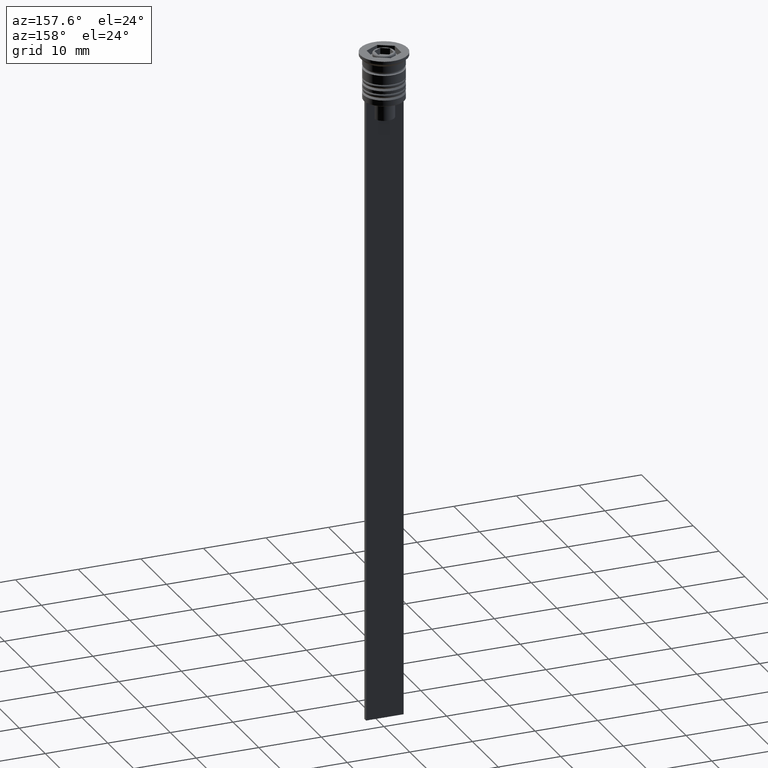
[diagram: clean part render]
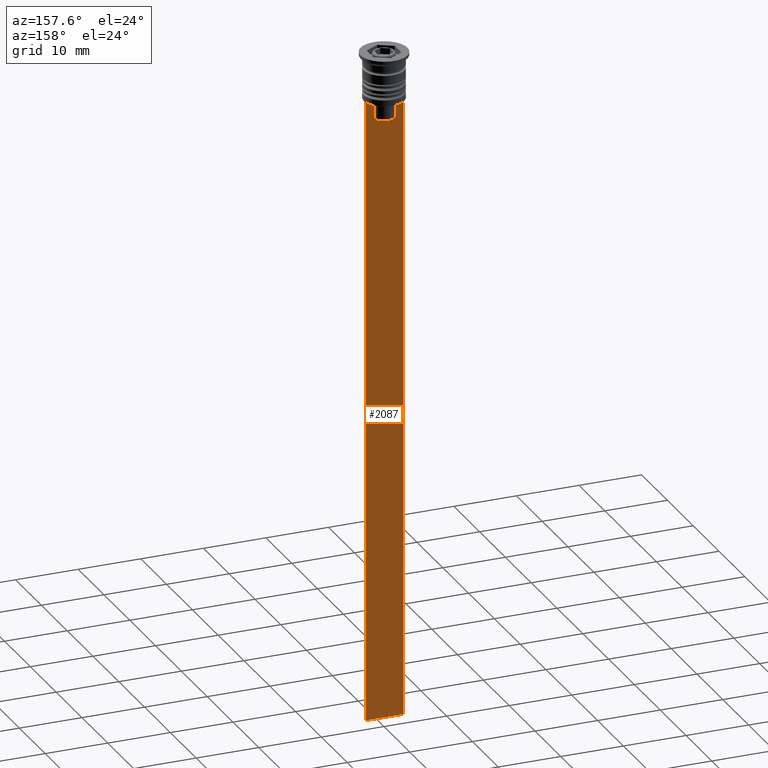
[diagram: same view with one face highlighted and labeled with its STEP entity id]
A machine part, auxiliary view. The second image highlights one B-rep face of the part: STEP entity #2087.
In plain terms, the highlighted planar face has unit normal (0, -1, -0).
Its self-contained STEP definition (entity closure, byte-faithful):
#25 = VECTOR ( 'NONE', #352, 1000.000000000000000 ) ;
#40 = DIRECTION ( 'NONE',  ( 1.000000000000000000, 0.000000000000000000, 0.000000000000000000 ) ) ;
#51 = DIRECTION ( 'NONE',  ( -1.000000000000000000, 0.000000000000000000, 0.000000000000000000 ) ) ;
#105 = ORIENTED_EDGE ( 'NONE', *, *, #1239, .T. ) ;
#148 = CARTESIAN_POINT ( 'NONE',  ( 1.612451549659713601, 0.3500000000000000333, -10.49999999999999822 ) ) ;
#163 = CARTESIAN_POINT ( 'NONE',  ( 1.612451549659713601, 0.3500000000000000333, -8.000000000000000000 ) ) ;
#181 = CARTESIAN_POINT ( 'NONE',  ( -1.952043732028445167, 0.3500000000000000333, -7.667018567316270961 ) ) ;
#199 = B_SPLINE_CURVE_WITH_KNOTS ( 'NONE', 3,
 ( #288, #1153, #1835, #320 ),
 .UNSPECIFIED., .F., .F.,
 ( 4, 4 ),
 ( 0.008600796474521226961, 0.009317962624906524910 ),
 .UNSPECIFIED. ) ;
#202 = CARTESIAN_POINT ( 'NONE',  ( 2.999999999999995559, 0.3500000000000000333, -1.459304675784417915 ) ) ;
#260 = DIRECTION ( 'NONE',  ( 0.000000000000000000, 0.000000000000000000, -1.000000000000000000 ) ) ;
#270 = CARTESIAN_POINT ( 'NONE',  ( 2.999999999999995559, 0.3500000000000000333, -107.5000000000000000 ) ) ;
#288 = CARTESIAN_POINT ( 'NONE',  ( 1.612451549659713601, 0.3500000000000000333, -8.000000000000000000 ) ) ;
#320 = CARTESIAN_POINT ( 'NONE',  ( 2.121320343559647270, 0.3500000000000000333, -7.500000000000000000 ) ) ;
#352 = DIRECTION ( 'NONE',  ( 1.000000000000000000, 0.000000000000000000, 0.000000000000000000 ) ) ;
#359 = ORIENTED_EDGE ( 'NONE', *, *, #1598, .T. ) ;
#370 = B_SPLINE_CURVE_WITH_KNOTS ( 'NONE', 3,
 ( #1208, #181, #1518, #1703 ),
 .UNSPECIFIED., .F., .F.,
 ( 4, 4 ),
 ( 0.003684653461239336628, 0.004398058763641255961 ),
 .UNSPECIFIED. ) ;
#372 = EDGE_CURVE ( 'NONE', #1214, #1257, #2088, .T. ) ;
#430 = VECTOR ( 'NONE', #40, 1000.000000000000000 ) ;
#432 = LINE ( 'NONE', #581, #1986 ) ;
#519 = CARTESIAN_POINT ( 'NONE',  ( 0.000000000000000000, 0.3500000000000000333, -10.49999999999999822 ) ) ;
#536 = DIRECTION ( 'NONE',  ( 1.000000000000000000, 0.000000000000000000, 0.000000000000000000 ) ) ;
#581 = CARTESIAN_POINT ( 'NONE',  ( -1.612451549659713601, 0.3500000000000000333, 0.000000000000000000 ) ) ;
#633 = CARTESIAN_POINT ( 'NONE',  ( -1.612451549659713601, 0.3500000000000000333, -10.49999999999999822 ) ) ;
#669 = VERTEX_POINT ( 'NONE', #1018 ) ;
#701 = EDGE_CURVE ( 'NONE', #669, #2072, #370, .T. ) ;
#708 = VECTOR ( 'NONE', #1550, 1000.000000000000000 ) ;
#726 = CARTESIAN_POINT ( 'NONE',  ( 2.999999999999995559, 0.3500000000000000333, -7.500000000000000000 ) ) ;
#738 = VERTEX_POINT ( 'NONE', #1768 ) ;
#847 = EDGE_CURVE ( 'NONE', #738, #669, #1588, .T. ) ;
#899 = DIRECTION ( 'NONE',  ( 0.000000000000000000, 0.000000000000000000, -1.000000000000000000 ) ) ;
#927 = AXIS2_PLACEMENT_3D ( 'NONE', #202, #1207, #260 ) ;
#961 = VECTOR ( 'NONE', #899, 1000.000000000000000 ) ;
#1018 = CARTESIAN_POINT ( 'NONE',  ( -2.121320343559647270, 0.3500000000000000333, -7.500000000000000000 ) ) ;
#1036 = LINE ( 'NONE', #1908, #1422 ) ;
#1055 = CARTESIAN_POINT ( 'NONE',  ( 1.612451549659713601, 0.3500000000000000333, 0.000000000000000000 ) ) ;
#1094 = EDGE_LOOP ( 'NONE', ( #2005, #1447, #1513, #1566, #2011, #1155, #105, #359, #1715, #1136 ) ) ;
#1124 = VERTEX_POINT ( 'NONE', #148 ) ;
#1136 = ORIENTED_EDGE ( 'NONE', *, *, #1828, .F. ) ;
#1153 = CARTESIAN_POINT ( 'NONE',  ( 1.782523989086206795, 0.3500000000000000333, -7.833797837268088315 ) ) ;
#1155 = ORIENTED_EDGE ( 'NONE', *, *, #1376, .T. ) ;
#1207 = DIRECTION ( 'NONE',  ( 0.000000000000000000, -1.000000000000000000, -0.000000000000000000 ) ) ;
#1208 = CARTESIAN_POINT ( 'NONE',  ( -2.121320343559647270, 0.3500000000000000333, -7.500000000000000000 ) ) ;
#1214 = VERTEX_POINT ( 'NONE', #270 ) ;
#1239 = EDGE_CURVE ( 'NONE', #1440, #1587, #1036, .T. ) ;
#1257 = VERTEX_POINT ( 'NONE', #1735 ) ;
#1340 = LINE ( 'NONE', #2010, #1682 ) ;
#1367 = VERTEX_POINT ( 'NONE', #633 ) ;
#1376 = EDGE_CURVE ( 'NONE', #1876, #1440, #199, .T. ) ;
#1400 = VECTOR ( 'NONE', #51, 1000.000000000000000 ) ;
#1422 = VECTOR ( 'NONE', #536, 1000.000000000000000 ) ;
#1428 = LINE ( 'NONE', #1906, #961 ) ;
#1440 = VERTEX_POINT ( 'NONE', #1706 ) ;
#1447 = ORIENTED_EDGE ( 'NONE', *, *, #701, .T. ) ;
#1513 = ORIENTED_EDGE ( 'NONE', *, *, #1635, .T. ) ;
#1518 = CARTESIAN_POINT ( 'NONE',  ( -1.782527878033863589, 0.3500000000000000333, -7.833794036819862860 ) ) ;
#1527 = CARTESIAN_POINT ( 'NONE',  ( -1.612451549659713601, 0.3500000000000000333, -8.000000000000000000 ) ) ;
#1547 = EDGE_CURVE ( 'NONE', #1124, #1876, #2013, .T. ) ;
#1550 = DIRECTION ( 'NONE',  ( -0.000000000000000000, -0.000000000000000000, 1.000000000000000000 ) ) ;
#1564 = CARTESIAN_POINT ( 'NONE',  ( 2.999999999999995559, 0.3500000000000000333, -7.500000000000000000 ) ) ;
#1566 = ORIENTED_EDGE ( 'NONE', *, *, #1980, .T. ) ;
#1587 = VERTEX_POINT ( 'NONE', #726 ) ;
#1588 = LINE ( 'NONE', #1564, #430 ) ;
#1598 = EDGE_CURVE ( 'NONE', #1587, #1214, #1428, .T. ) ;
#1635 = EDGE_CURVE ( 'NONE', #2072, #1367, #432, .T. ) ;
#1682 = VECTOR ( 'NONE', #1842, 1000.000000000000000 ) ;
#1703 = CARTESIAN_POINT ( 'NONE',  ( -1.612451549659713601, 0.3500000000000000333, -8.000000000000000000 ) ) ;
#1706 = CARTESIAN_POINT ( 'NONE',  ( 2.121320343559647270, 0.3500000000000000333, -7.500000000000000000 ) ) ;
#1714 = FACE_OUTER_BOUND ( 'NONE', #1094, .T. ) ;
#1715 = ORIENTED_EDGE ( 'NONE', *, *, #372, .T. ) ;
#1735 = CARTESIAN_POINT ( 'NONE',  ( -3.000000000000004441, 0.3500000000000000333, -107.5000000000000000 ) ) ;
#1768 = CARTESIAN_POINT ( 'NONE',  ( -3.000000000000004441, 0.3499999999999999223, -7.500000000000000000 ) ) ;
#1769 = CARTESIAN_POINT ( 'NONE',  ( 2.999999999999995559, 0.3500000000000000333, -107.5000000000000000 ) ) ;
#1772 = PLANE ( 'NONE',  #927 ) ;
#1828 = EDGE_CURVE ( 'NONE', #738, #1257, #1340, .T. ) ;
#1835 = CARTESIAN_POINT ( 'NONE',  ( 1.952040775369266346, 0.3500000000000000333, -7.667021484535463394 ) ) ;
#1842 = DIRECTION ( 'NONE',  ( 0.000000000000000000, 0.000000000000000000, -1.000000000000000000 ) ) ;
#1876 = VERTEX_POINT ( 'NONE', #163 ) ;
#1906 = CARTESIAN_POINT ( 'NONE',  ( 2.999999999999995559, 0.3500000000000000333, -1.459304675784417915 ) ) ;
#1908 = CARTESIAN_POINT ( 'NONE',  ( 2.999999999999995559, 0.3500000000000000333, -7.500000000000000000 ) ) ;
#1926 = DIRECTION ( 'NONE',  ( 0.000000000000000000, 0.000000000000000000, -1.000000000000000000 ) ) ;
#1980 = EDGE_CURVE ( 'NONE', #1367, #1124, #2066, .T. ) ;
#1986 = VECTOR ( 'NONE', #1926, 1000.000000000000000 ) ;
#2005 = ORIENTED_EDGE ( 'NONE', *, *, #847, .T. ) ;
#2010 = CARTESIAN_POINT ( 'NONE',  ( -3.000000000000004441, 0.3500000000000000333, -1.459304675784417915 ) ) ;
#2011 = ORIENTED_EDGE ( 'NONE', *, *, #1547, .T. ) ;
#2013 = LINE ( 'NONE', #1055, #708 ) ;
#2066 = LINE ( 'NONE', #519, #25 ) ;
#2072 = VERTEX_POINT ( 'NONE', #1527 ) ;
#2087 = ADVANCED_FACE ( 'NONE', ( #1714 ), #1772, .F. ) ;
#2088 = LINE ( 'NONE', #1769, #1400 ) ;